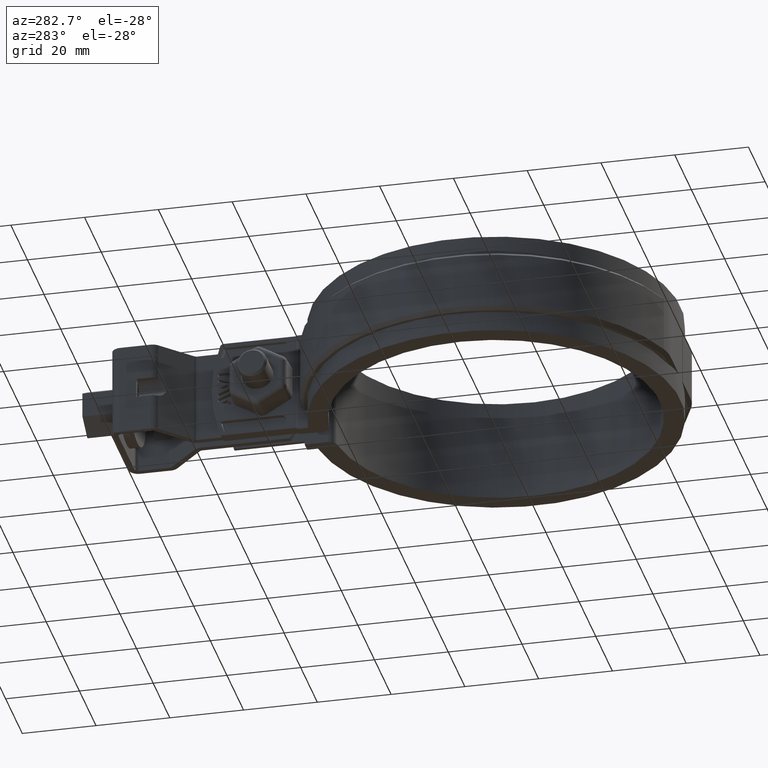
[diagram: clean part render]
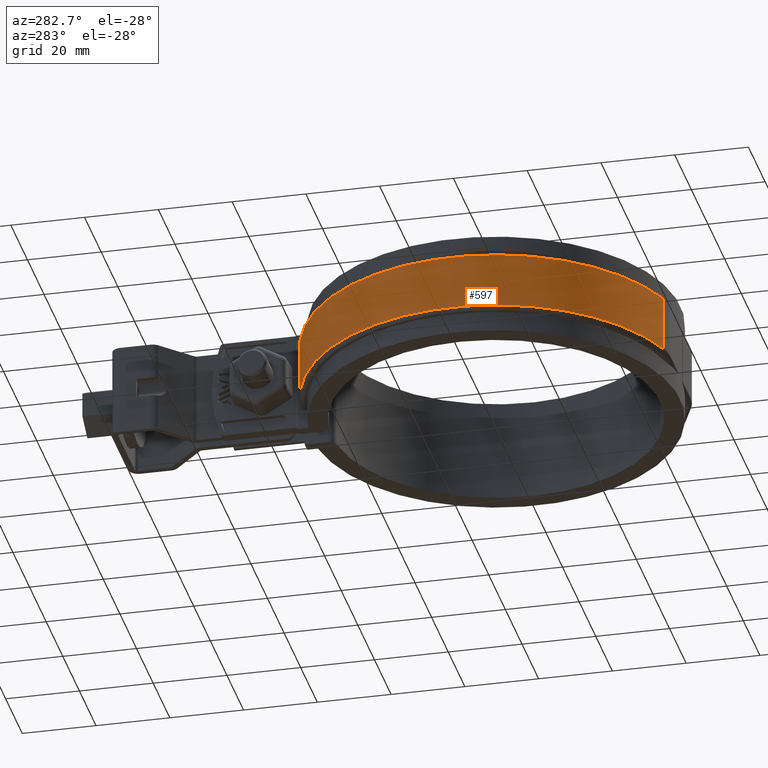
[diagram: same view with one face highlighted and labeled with its STEP entity id]
A machine part, auxiliary view. The second image highlights one B-rep face of the part: STEP entity #597.
In plain terms, the highlighted cylindrical surface (partial cylindrical patch) has radius 52 mm, axis along (0, 0, -1).
Its self-contained STEP definition (entity closure, byte-faithful):
#597 = ADVANCED_FACE( '', ( #1107 ), #1108, .T. );
#1107 = FACE_OUTER_BOUND( '', #2398, .T. );
#1108 = CYLINDRICAL_SURFACE( '', #2399, 52.0000000000000 );
#2398 = EDGE_LOOP( '', ( #5490, #5491, #5492, #5493 ) );
#2399 = AXIS2_PLACEMENT_3D( '', #5494, #5495, #5496 );
#5490 = ORIENTED_EDGE( '', *, *, #7738, .T. );
#5491 = ORIENTED_EDGE( '', *, *, #7788, .T. );
#5492 = ORIENTED_EDGE( '', *, *, #7515, .F. );
#5493 = ORIENTED_EDGE( '', *, *, #7525, .T. );
#5494 = CARTESIAN_POINT( '', ( 0.000000000000000, 6.93889390390723E-015, -8.50000000000000 ) );
#5495 = DIRECTION( '', ( 0.000000000000000, 0.000000000000000, -1.00000000000000 ) );
#5496 = DIRECTION( '', ( -0.0961538461538461, 0.995366484200579, 0.000000000000000 ) );
#7515 = EDGE_CURVE( '', #8624, #8626, #8627, .T. );
#7525 = EDGE_CURVE( '', #8624, #8643, #8645, .T. );
#7738 = EDGE_CURVE( '', #8643, #9016, #9018, .T. );
#7788 = EDGE_CURVE( '', #9016, #8626, #9081, .T. );
#8624 = VERTEX_POINT( '', #11760 );
#8626 = VERTEX_POINT( '', #11765 );
#8627 = LINE( '', #11766, #11767 );
#8643 = VERTEX_POINT( '', #11792 );
#8645 = CIRCLE( '', #11795, 52.0000000000000 );
#9016 = VERTEX_POINT( '', #12874 );
#9018 = LINE( '', #12876, #12877 );
#9081 = CIRCLE( '', #12978, 52.0000000000000 );
#11760 = CARTESIAN_POINT( '', ( -6.00000000000000, 51.6526862805799, -7.50000000000000 ) );
#11765 = CARTESIAN_POINT( '', ( -6.00000000000000, 51.6526862805799, 7.50000000000000 ) );
#11766 = CARTESIAN_POINT( '', ( -6.00000000000000, 51.6526862805799, -8.50000000000000 ) );
#11767 = VECTOR( '', #14594, 1000.00000000000 );
#11792 = CARTESIAN_POINT( '', ( -16.6585009458195, -49.2594594594595, -7.49999999999995 ) );
#11795 = AXIS2_PLACEMENT_3D( '', #14605, #14606, #14607 );
#12874 = CARTESIAN_POINT( '', ( -16.6585009458195, -49.2594594594595, 7.49999999999995 ) );
#12876 = CARTESIAN_POINT( '', ( -16.6585009458195, -49.2594594594595, -8.50000000000000 ) );
#12877 = VECTOR( '', #14817, 1000.00000000000 );
#12978 = AXIS2_PLACEMENT_3D( '', #14892, #14893, #14894 );
#14594 = DIRECTION( '', ( 0.000000000000000, 0.000000000000000, 1.00000000000000 ) );
#14605 = CARTESIAN_POINT( '', ( 0.000000000000000, 6.93889390390723E-015, -7.50000000000000 ) );
#14606 = DIRECTION( '', ( 0.000000000000000, 0.000000000000000, 1.00000000000000 ) );
#14607 = DIRECTION( '', ( 1.00000000000000, 0.000000000000000, 0.000000000000000 ) );
#14817 = DIRECTION( '', ( 0.000000000000000, 0.000000000000000, 1.00000000000000 ) );
#14892 = CARTESIAN_POINT( '', ( 0.000000000000000, 6.93889390390723E-015, 7.50000000000000 ) );
#14893 = DIRECTION( '', ( 0.000000000000000, 0.000000000000000, -1.00000000000000 ) );
#14894 = DIRECTION( '', ( -1.00000000000000, 0.000000000000000, 0.000000000000000 ) );